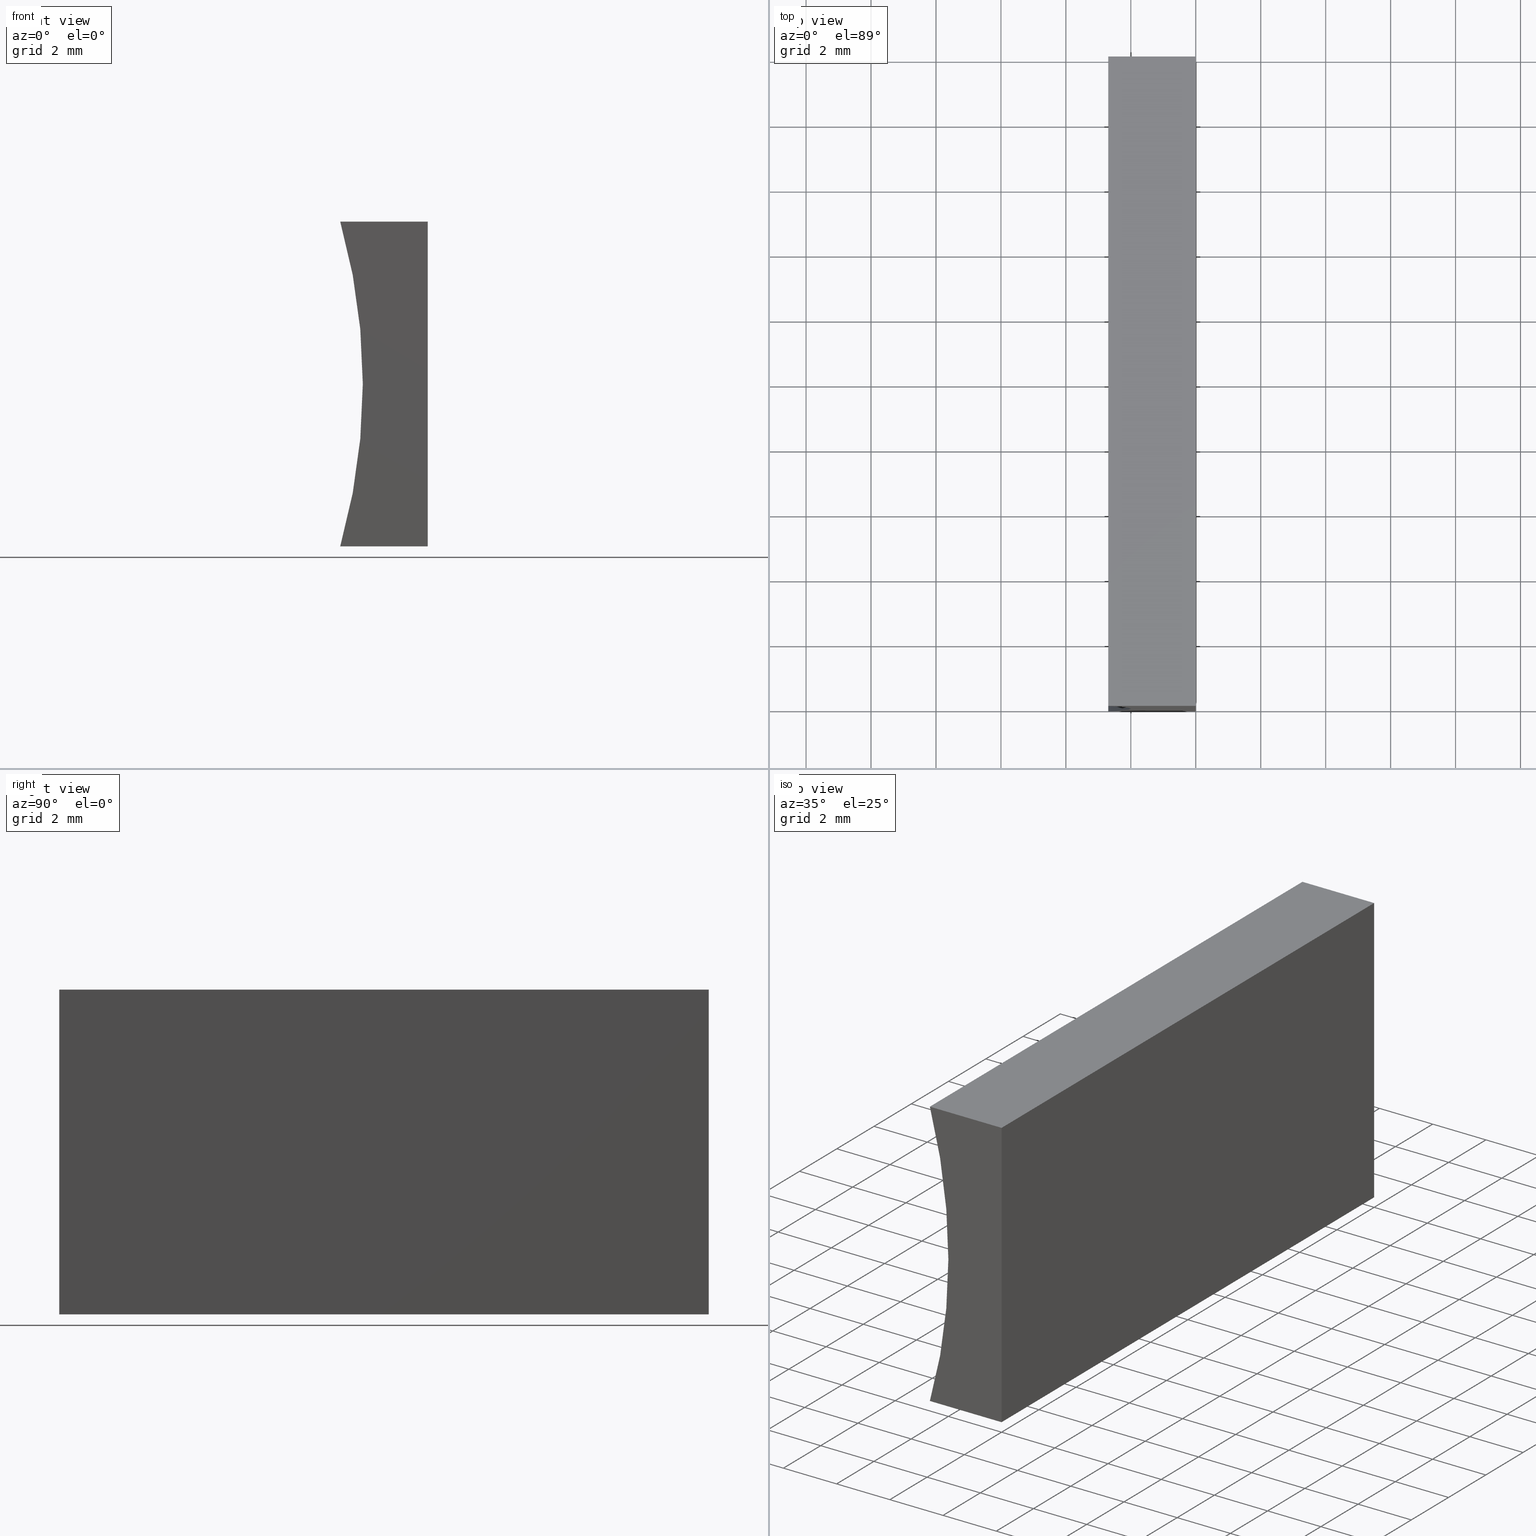
[diagram: canonical four-view strip — front | top / right | iso, engineering-drawing reading convention]
A machine part, canonical four-view strip (front | top / right | iso — engineering-drawing reading convention). The complete STEP part file that produces these views, byte-faithful:
ISO-10303-21;
HEADER;
FILE_DESCRIPTION (( 'STEP AP214' ),
    '1' );
FILE_NAME ('155478.STEP',
    '2019-07-03T07:36:41',
    ( 'user' ),
    ( '΢���й�' ),
    'SwSTEP 2.0',
    'SolidWorks 2016',
    '' );
FILE_SCHEMA (( 'AUTOMOTIVE_DESIGN' ));
ENDSEC;

DATA;
#1 = AXIS2_PLACEMENT_3D ( 'NONE', #139, #195, #110 ) ;
#2 = FACE_OUTER_BOUND ( 'NONE', #146, .T. ) ;
#3 = AXIS2_PLACEMENT_3D ( 'NONE', #53, #45, #144 ) ;
#4 =( NAMED_UNIT ( * ) PLANE_ANGLE_UNIT ( ) SI_UNIT ( $, .RADIAN. ) );
#5 = DIRECTION ( 'NONE',  ( -1.000000000000000000, 0.0000000000000000000, 6.435587152311167000E-016 ) ) ;
#6 = MECHANICAL_DESIGN_GEOMETRIC_PRESENTATION_REPRESENTATION (  '', ( #80 ), #84 ) ;
#7 = FILL_AREA_STYLE ('',( #152 ) ) ;
#8 = EDGE_CURVE ( 'NONE', #166, #131, #137, .T. ) ;
#9 = DIRECTION ( 'NONE',  ( 1.000000000000000000, -0.0000000000000000000, 6.435587152311169000E-016 ) ) ;
#10 = ORIENTED_EDGE ( 'NONE', *, *, #28, .T. ) ;
#11 = CARTESIAN_POINT ( 'NONE',  ( 0.0000000000000000000, 20.00000000000000000, 0.0000000000000000000 ) ) ;
#12 = AXIS2_PLACEMENT_3D ( 'NONE', #76, #92, #71 ) ;
#13 = DIRECTION ( 'NONE',  ( -1.000000000000000000, 0.0000000000000000000, 6.435587152311167000E-016 ) ) ;
#14 = VERTEX_POINT ( 'NONE', #193 ) ;
#15 = PRODUCT ( '155478', '155478', '', ( #155 ) ) ;
#16 = EDGE_CURVE ( 'NONE', #32, #86, #95, .T. ) ;
#17 = PRODUCT_DEFINITION_FORMATION_WITH_SPECIFIED_SOURCE ( '�κ�', '', #15, .NOT_KNOWN. ) ;
#18 =( LENGTH_UNIT ( ) NAMED_UNIT ( * ) SI_UNIT ( .MILLI., .METRE. ) );
#19 =( GEOMETRIC_REPRESENTATION_CONTEXT ( 3 ) GLOBAL_UNCERTAINTY_ASSIGNED_CONTEXT ( ( #136 ) ) GLOBAL_UNIT_ASSIGNED_CONTEXT ( ( #175, #4, #156 ) ) REPRESENTATION_CONTEXT ( 'NONE', 'WORKASPACE' ) );
#20 = ADVANCED_FACE ( 'NONE', ( #198 ), #31, .F. ) ;
#21 = ORIENTED_EDGE ( 'NONE', *, *, #68, .F. ) ;
#22 = AXIS2_PLACEMENT_3D ( 'NONE', #179, #183, #27 ) ;
#23 = ADVANCED_FACE ( 'NONE', ( #87 ), #150, .F. ) ;
#24 = DIRECTION ( 'NONE',  ( 0.0000000000000000000, 0.0000000000000000000, -1.000000000000000000 ) ) ;
#25 = SURFACE_STYLE_FILL_AREA ( #7 ) ;
#26 = CARTESIAN_POINT ( 'NONE',  ( -20.31999999999999700, 20.00000000000000000, 5.000000000000001800 ) ) ;
#27 = DIRECTION ( 'NONE',  ( 1.000000000000000000, 0.0000000000000000000, 0.0000000000000000000 ) ) ;
#28 = EDGE_CURVE ( 'NONE', #46, #14, #98, .T. ) ;
#29 = CARTESIAN_POINT ( 'NONE',  ( 0.0000000000000000000, 20.00000000000000000, 0.0000000000000000000 ) ) ;
#30 = ADVANCED_FACE ( 'NONE', ( #40 ), #93, .F. ) ;
#31 = PLANE ( 'NONE',  #12 ) ;
#32 = VERTEX_POINT ( 'NONE', #101 ) ;
#33 = CARTESIAN_POINT ( 'NONE',  ( -2.695517028860106900, 20.00000000000000000, 1.734723475976807100E-015 ) ) ;
#34 = UNCERTAINTY_MEASURE_WITH_UNIT (LENGTH_MEASURE( 1.000000000000000100E-005 ), #18, 'distance_accuracy_value', 'NONE');
#35 = DIRECTION ( 'NONE',  ( 6.435587152311167000E-016, -0.0000000000000000000, 1.000000000000000000 ) ) ;
#36 = EDGE_LOOP ( 'NONE', ( #79, #130, #106, #121 ) ) ;
#37 = EDGE_CURVE ( 'NONE', #86, #14, #164, .T. ) ;
#38 =( LENGTH_UNIT ( ) NAMED_UNIT ( * ) SI_UNIT ( .MILLI., .METRE. ) );
#39 = CARTESIAN_POINT ( 'NONE',  ( 0.0000000000000000000, 0.0000000000000000000, 0.0000000000000000000 ) ) ;
#40 = FACE_OUTER_BOUND ( 'NONE', #96, .T. ) ;
#41 = LINE ( 'NONE', #109, #190 ) ;
#42 = EDGE_LOOP ( 'NONE', ( #21, #143, #83, #196 ) ) ;
#43 = APPLICATION_CONTEXT ( 'automotive_design' ) ;
#44 = EDGE_CURVE ( 'NONE', #159, #32, #64, .T. ) ;
#45 = DIRECTION ( 'NONE',  ( -0.0000000000000000000, -1.000000000000000000, -0.0000000000000000000 ) ) ;
#46 = VERTEX_POINT ( 'NONE', #122 ) ;
#47 = ORIENTED_EDGE ( 'NONE', *, *, #141, .T. ) ;
#48 = PRESENTATION_STYLE_ASSIGNMENT (( #70 ) ) ;
#49 = EDGE_CURVE ( 'NONE', #189, #166, #149, .T. ) ;
#50 = LINE ( 'NONE', #112, #59 ) ;
#51 = ORIENTED_EDGE ( 'NONE', *, *, #16, .F. ) ;
#52 = UNCERTAINTY_MEASURE_WITH_UNIT (LENGTH_MEASURE( 1.000000000000000100E-005 ), #38, 'distance_accuracy_value', 'NONE');
#53 = CARTESIAN_POINT ( 'NONE',  ( -20.31999999999999700, 20.00000000000000000, 5.000000000000001800 ) ) ;
#54 =( NAMED_UNIT ( * ) PLANE_ANGLE_UNIT ( ) SI_UNIT ( $, .RADIAN. ) );
#55 = PRODUCT_DEFINITION_CONTEXT ( 'detailed design', #43, 'design' ) ;
#56 = CARTESIAN_POINT ( 'NONE',  ( 6.123233995736766300E-016, 20.00000000000000000, 10.00000000000000000 ) ) ;
#57 = DIRECTION ( 'NONE',  ( 0.0000000000000000000, -0.0000000000000000000, 1.000000000000000000 ) ) ;
#58 = ORIENTED_EDGE ( 'NONE', *, *, #68, .T. ) ;
#59 = VECTOR ( 'NONE', #134, 1000.000000000000000 ) ;
#60 = DIRECTION ( 'NONE',  ( 1.000000000000000000, 0.0000000000000000000, -6.435587152311167000E-016 ) ) ;
#61 = EDGE_CURVE ( 'NONE', #159, #131, #126, .T. ) ;
#62 = CARTESIAN_POINT ( 'NONE',  ( -20.31999999999999700, 0.0000000000000000000, 5.000000000000001800 ) ) ;
#63 = VECTOR ( 'NONE', #100, 1000.000000000000000 ) ;
#64 = LINE ( 'NONE', #89, #180 ) ;
#65 = ORIENTED_EDGE ( 'NONE', *, *, #141, .F. ) ;
#66 = CIRCLE ( 'NONE', #3, 18.32000000000000000 ) ;
#67 = ORIENTED_EDGE ( 'NONE', *, *, #44, .F. ) ;
#68 = EDGE_CURVE ( 'NONE', #131, #86, #151, .T. ) ;
#69 = LINE ( 'NONE', #81, #176 ) ;
#70 = SURFACE_STYLE_USAGE ( .BOTH. , #107 ) ;
#71 = DIRECTION ( 'NONE',  ( 6.123233995736766000E-017, 0.0000000000000000000, 1.000000000000000000 ) ) ;
#72 = CARTESIAN_POINT ( 'NONE',  ( 0.0000000000000000000, 20.00000000000000000, 0.0000000000000000000 ) ) ;
#73 = DIRECTION ( 'NONE',  ( 0.0000000000000000000, -0.0000000000000000000, 1.000000000000000000 ) ) ;
#74 = ADVANCED_FACE ( 'NONE', ( #2 ), #127, .F. ) ;
#75 = ADVANCED_FACE ( 'NONE', ( #105 ), #124, .T. ) ;
#76 = CARTESIAN_POINT ( 'NONE',  ( 0.0000000000000000000, 20.00000000000000000, 0.0000000000000000000 ) ) ;
#77 = ORIENTED_EDGE ( 'NONE', *, *, #61, .T. ) ;
#78 = PRESENTATION_STYLE_ASSIGNMENT (( #147 ) ) ;
#79 = ORIENTED_EDGE ( 'NONE', *, *, #8, .T. ) ;
#80 = STYLED_ITEM ( 'NONE', ( #48 ), #177 ) ;
#81 = CARTESIAN_POINT ( 'NONE',  ( 0.0000000000000000000, 20.00000000000000000, 0.0000000000000000000 ) ) ;
#82 = ADVANCED_FACE ( 'NONE', ( #160 ), #118, .F. ) ;
#83 = ORIENTED_EDGE ( 'NONE', *, *, #119, .F. ) ;
#84 =( GEOMETRIC_REPRESENTATION_CONTEXT ( 3 ) GLOBAL_UNCERTAINTY_ASSIGNED_CONTEXT ( ( #34 ) ) GLOBAL_UNIT_ASSIGNED_CONTEXT ( ( #18, #54, #194 ) ) REPRESENTATION_CONTEXT ( 'NONE', 'WORKASPACE' ) );
#85 = COLOUR_RGB ( '',1.000000000000000000, 1.000000000000000000, 1.000000000000000000 ) ;
#86 = VERTEX_POINT ( 'NONE', #115 ) ;
#87 = FACE_OUTER_BOUND ( 'NONE', #42, .T. ) ;
#88 = DIRECTION ( 'NONE',  ( -0.0000000000000000000, -1.000000000000000000, -0.0000000000000000000 ) ) ;
#89 = CARTESIAN_POINT ( 'NONE',  ( 0.0000000000000000000, 20.00000000000000000, 0.0000000000000000000 ) ) ;
#90 = VECTOR ( 'NONE', #191, 1000.000000000000000 ) ;
#91 = VECTOR ( 'NONE', #88, 1000.000000000000000 ) ;
#92 = DIRECTION ( 'NONE',  ( -1.000000000000000000, 0.0000000000000000000, 6.123233995736766000E-017 ) ) ;
#93 = CYLINDRICAL_SURFACE ( 'NONE', #165, 18.32000000000000000 ) ;
#94 = MECHANICAL_DESIGN_GEOMETRIC_PRESENTATION_REPRESENTATION (  '', ( #145 ), #19 ) ;
#95 = LINE ( 'NONE', #33, #63 ) ;
#96 = EDGE_LOOP ( 'NONE', ( #123, #154, #142, #128 ) ) ;
#97 = DIRECTION ( 'NONE',  ( 0.0000000000000000000, 1.000000000000000000, 0.0000000000000000000 ) ) ;
#98 = LINE ( 'NONE', #108, #202 ) ;
#99 = CARTESIAN_POINT ( 'NONE',  ( 6.123233995736766300E-016, 20.00000000000000000, 10.00000000000000000 ) ) ;
#100 = DIRECTION ( 'NONE',  ( -0.0000000000000000000, -1.000000000000000000, -0.0000000000000000000 ) ) ;
#101 = CARTESIAN_POINT ( 'NONE',  ( -2.695517028860106900, 20.00000000000000000, 1.734723475976807100E-015 ) ) ;
#102 = AXIS2_PLACEMENT_3D ( 'NONE', #174, #153, #199 ) ;
#103 = CARTESIAN_POINT ( 'NONE',  ( 0.0000000000000000000, 0.0000000000000000000, 0.0000000000000000000 ) ) ;
#104 = EDGE_CURVE ( 'NONE', #189, #159, #69, .T. ) ;
#105 = FACE_OUTER_BOUND ( 'NONE', #129, .T. ) ;
#106 = ORIENTED_EDGE ( 'NONE', *, *, #104, .F. ) ;
#107 = SURFACE_SIDE_STYLE ('',( #113 ) ) ;
#108 = CARTESIAN_POINT ( 'NONE',  ( -2.695517028860105600, 20.00000000000000000, 9.999999999999998200 ) ) ;
#109 = CARTESIAN_POINT ( 'NONE',  ( 6.123233995736766300E-016, 0.0000000000000000000, 10.00000000000000000 ) ) ;
#110 = DIRECTION ( 'NONE',  ( -1.000000000000000000, 0.0000000000000000000, -6.435587152311169000E-016 ) ) ;
#111 = PRESENTATION_LAYER_ASSIGNMENT (  '', '', ( #145 ) ) ;
#112 = CARTESIAN_POINT ( 'NONE',  ( 6.123233995736766300E-016, 20.00000000000000000, 10.00000000000000000 ) ) ;
#113 = SURFACE_STYLE_FILL_AREA ( #182 ) ;
#114 =( GEOMETRIC_REPRESENTATION_CONTEXT ( 3 ) GLOBAL_UNCERTAINTY_ASSIGNED_CONTEXT ( ( #52 ) ) GLOBAL_UNIT_ASSIGNED_CONTEXT ( ( #38, #203, #140 ) ) REPRESENTATION_CONTEXT ( 'NONE', 'WORKASPACE' ) );
#115 = CARTESIAN_POINT ( 'NONE',  ( -2.695517028860106900, 0.0000000000000000000, 1.734723475976807100E-015 ) ) ;
#116 = DIRECTION ( 'NONE',  ( -0.0000000000000000000, -1.000000000000000000, -0.0000000000000000000 ) ) ;
#117 = ORIENTED_EDGE ( 'NONE', *, *, #104, .T. ) ;
#118 = PLANE ( 'NONE',  #1 ) ;
#119 = EDGE_CURVE ( 'NONE', #14, #166, #41, .T. ) ;
#120 = ADVANCED_BREP_SHAPE_REPRESENTATION ( '155478', ( #177, #22 ), #114 ) ;
#121 = ORIENTED_EDGE ( 'NONE', *, *, #49, .T. ) ;
#122 = CARTESIAN_POINT ( 'NONE',  ( -2.695517028860105600, 20.00000000000000000, 9.999999999999998200 ) ) ;
#123 = ORIENTED_EDGE ( 'NONE', *, *, #37, .T. ) ;
#124 = PLANE ( 'NONE',  #187 ) ;
#125 = CARTESIAN_POINT ( 'NONE',  ( 0.0000000000000000000, 0.0000000000000000000, 0.0000000000000000000 ) ) ;
#126 = LINE ( 'NONE', #72, #91 ) ;
#127 = PLANE ( 'NONE',  #167 ) ;
#128 = ORIENTED_EDGE ( 'NONE', *, *, #16, .T. ) ;
#129 = EDGE_LOOP ( 'NONE', ( #171, #204, #47, #117 ) ) ;
#130 = ORIENTED_EDGE ( 'NONE', *, *, #61, .F. ) ;
#131 = VERTEX_POINT ( 'NONE', #103 ) ;
#132 = EDGE_CURVE ( 'NONE', #32, #46, #66, .T. ) ;
#133 = PRODUCT_DEFINITION_SHAPE ( 'NONE', 'NONE',  #201 ) ;
#134 = DIRECTION ( 'NONE',  ( 1.000000000000000000, -0.0000000000000000000, 6.435587152311169000E-016 ) ) ;
#135 = CLOSED_SHELL ( 'NONE', ( #74, #30, #82, #20, #75, #23 ) ) ;
#136 = UNCERTAINTY_MEASURE_WITH_UNIT (LENGTH_MEASURE( 1.000000000000000100E-005 ), #175, 'distance_accuracy_value', 'NONE');
#137 = LINE ( 'NONE', #39, #90 ) ;
#138 = CARTESIAN_POINT ( 'NONE',  ( 6.123233995736766300E-016, 0.0000000000000000000, 10.00000000000000000 ) ) ;
#139 = CARTESIAN_POINT ( 'NONE',  ( 6.123233995736766300E-016, 20.00000000000000000, 10.00000000000000000 ) ) ;
#140 =( NAMED_UNIT ( * ) SI_UNIT ( $, .STERADIAN. ) SOLID_ANGLE_UNIT ( ) );
#141 = EDGE_CURVE ( 'NONE', #46, #189, #50, .T. ) ;
#142 = ORIENTED_EDGE ( 'NONE', *, *, #132, .F. ) ;
#143 = ORIENTED_EDGE ( 'NONE', *, *, #8, .F. ) ;
#144 = DIRECTION ( 'NONE',  ( 0.0000000000000000000, 0.0000000000000000000, 1.000000000000000000 ) ) ;
#145 = STYLED_ITEM ( 'NONE', ( #78 ), #120 ) ;
#146 = EDGE_LOOP ( 'NONE', ( #58, #51, #67, #77 ) ) ;
#147 = SURFACE_STYLE_USAGE ( .BOTH. , #172 ) ;
#148 = PRESENTATION_LAYER_ASSIGNMENT (  '', '', ( #80 ) ) ;
#149 = LINE ( 'NONE', #99, #178 ) ;
#150 = PLANE ( 'NONE',  #173 ) ;
#151 = LINE ( 'NONE', #125, #188 ) ;
#152 = FILL_AREA_STYLE_COLOUR ( '', #85 ) ;
#153 = DIRECTION ( 'NONE',  ( -0.0000000000000000000, -1.000000000000000000, -0.0000000000000000000 ) ) ;
#154 = ORIENTED_EDGE ( 'NONE', *, *, #28, .F. ) ;
#155 = PRODUCT_CONTEXT ( 'NONE', #163, 'mechanical' ) ;
#156 =( NAMED_UNIT ( * ) SI_UNIT ( $, .STERADIAN. ) SOLID_ANGLE_UNIT ( ) );
#157 = APPLICATION_PROTOCOL_DEFINITION ( 'draft international standard', 'automotive_design', 1998, #43 ) ;
#158 = APPLICATION_PROTOCOL_DEFINITION ( 'draft international standard', 'automotive_design', 1998, #163 ) ;
#159 = VERTEX_POINT ( 'NONE', #11 ) ;
#160 = FACE_OUTER_BOUND ( 'NONE', #184, .T. ) ;
#161 = ORIENTED_EDGE ( 'NONE', *, *, #119, .T. ) ;
#162 = CARTESIAN_POINT ( 'NONE',  ( -20.31999999999999700, 20.00000000000000000, 5.000000000000001800 ) ) ;
#163 = APPLICATION_CONTEXT ( 'automotive_design' ) ;
#164 = CIRCLE ( 'NONE', #102, 18.32000000000000000 ) ;
#165 = AXIS2_PLACEMENT_3D ( 'NONE', #162, #168, #24 ) ;
#166 = VERTEX_POINT ( 'NONE', #138 ) ;
#167 = AXIS2_PLACEMENT_3D ( 'NONE', #29, #35, #60 ) ;
#168 = DIRECTION ( 'NONE',  ( -0.0000000000000000000, -1.000000000000000000, -0.0000000000000000000 ) ) ;
#169 = DIRECTION ( 'NONE',  ( -6.123233995736766000E-017, -0.0000000000000000000, -1.000000000000000000 ) ) ;
#170 = DIRECTION ( 'NONE',  ( -0.0000000000000000000, -1.000000000000000000, -0.0000000000000000000 ) ) ;
#171 = ORIENTED_EDGE ( 'NONE', *, *, #44, .T. ) ;
#172 = SURFACE_SIDE_STYLE ('',( #25 ) ) ;
#173 = AXIS2_PLACEMENT_3D ( 'NONE', #62, #97, #57 ) ;
#174 = CARTESIAN_POINT ( 'NONE',  ( -20.31999999999999700, 0.0000000000000000000, 5.000000000000001800 ) ) ;
#175 =( LENGTH_UNIT ( ) NAMED_UNIT ( * ) SI_UNIT ( .MILLI., .METRE. ) );
#176 = VECTOR ( 'NONE', #169, 1000.000000000000000 ) ;
#177 = MANIFOLD_SOLID_BREP ( '͹̨-����1', #135 ) ;
#178 = VECTOR ( 'NONE', #116, 1000.000000000000000 ) ;
#179 = CARTESIAN_POINT ( 'NONE',  ( 0.0000000000000000000, 0.0000000000000000000, 0.0000000000000000000 ) ) ;
#180 = VECTOR ( 'NONE', #13, 1000.000000000000000 ) ;
#181 = DIRECTION ( 'NONE',  ( 0.0000000000000000000, 1.000000000000000000, 0.0000000000000000000 ) ) ;
#182 = FILL_AREA_STYLE ('',( #197 ) ) ;
#183 = DIRECTION ( 'NONE',  ( 0.0000000000000000000, 0.0000000000000000000, 1.000000000000000000 ) ) ;
#184 = EDGE_LOOP ( 'NONE', ( #161, #200, #65, #10 ) ) ;
#185 = SHAPE_DEFINITION_REPRESENTATION ( #133, #120 ) ;
#186 = COLOUR_RGB ( '',1.000000000000000000, 1.000000000000000000, 1.000000000000000000 ) ;
#187 = AXIS2_PLACEMENT_3D ( 'NONE', #26, #181, #73 ) ;
#188 = VECTOR ( 'NONE', #5, 1000.000000000000000 ) ;
#189 = VERTEX_POINT ( 'NONE', #56 ) ;
#190 = VECTOR ( 'NONE', #9, 1000.000000000000000 ) ;
#191 = DIRECTION ( 'NONE',  ( -6.123233995736766000E-017, -0.0000000000000000000, -1.000000000000000000 ) ) ;
#192 = PRODUCT_RELATED_PRODUCT_CATEGORY ( 'part', '', ( #15 ) ) ;
#193 = CARTESIAN_POINT ( 'NONE',  ( -2.695517028860105600, 0.0000000000000000000, 9.999999999999998200 ) ) ;
#194 =( NAMED_UNIT ( * ) SI_UNIT ( $, .STERADIAN. ) SOLID_ANGLE_UNIT ( ) );
#195 = DIRECTION ( 'NONE',  ( 6.435587152311169000E-016, 0.0000000000000000000, -1.000000000000000000 ) ) ;
#196 = ORIENTED_EDGE ( 'NONE', *, *, #37, .F. ) ;
#197 = FILL_AREA_STYLE_COLOUR ( '', #186 ) ;
#198 = FACE_OUTER_BOUND ( 'NONE', #36, .T. ) ;
#199 = DIRECTION ( 'NONE',  ( 0.0000000000000000000, 0.0000000000000000000, 1.000000000000000000 ) ) ;
#200 = ORIENTED_EDGE ( 'NONE', *, *, #49, .F. ) ;
#201 = PRODUCT_DEFINITION ( 'δ֪', '', #17, #55 ) ;
#202 = VECTOR ( 'NONE', #170, 1000.000000000000000 ) ;
#203 =( NAMED_UNIT ( * ) PLANE_ANGLE_UNIT ( ) SI_UNIT ( $, .RADIAN. ) );
#204 = ORIENTED_EDGE ( 'NONE', *, *, #132, .T. ) ;
ENDSEC;
END-ISO-10303-21;
